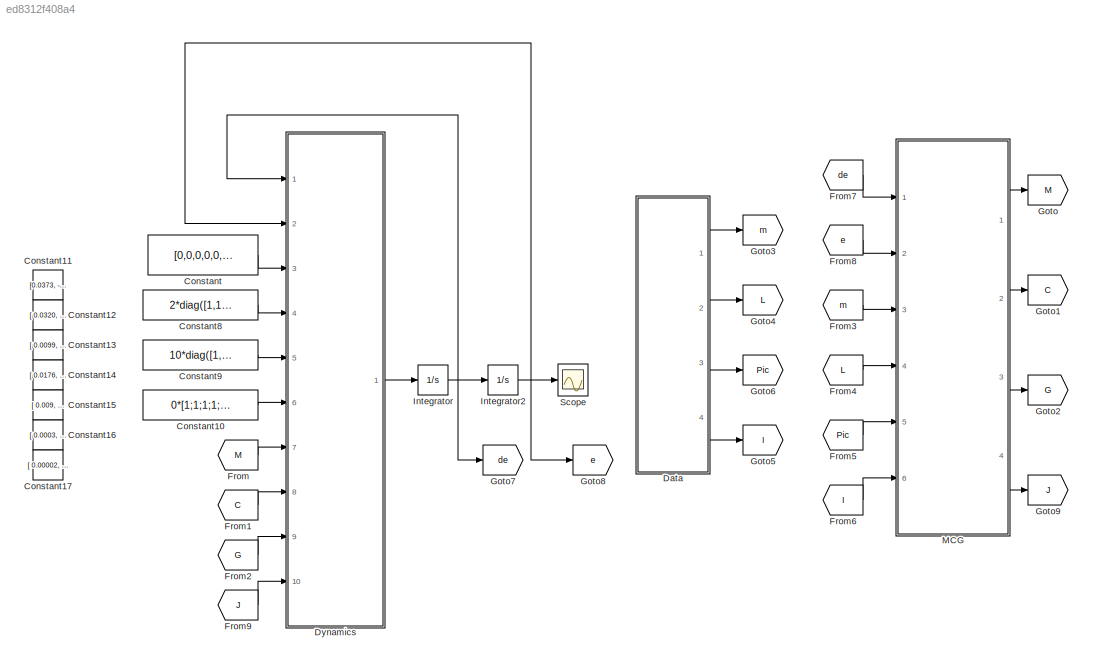
MODEL slx_ed8312f408a4
KIND model
CONFIG AbsTol = auto
CONFIG EnableMultiTasking = off
CONFIG FixedStep = 0.01
CONFIG MaxStep = auto
CONFIG MinStep = auto
CONFIG RelTol = 1e-3
CONFIG SampleTimeConstraint = Unconstrained
CONFIG Solver = FixedStepAuto
CONFIG SolverName = FixedStepAuto
CONFIG StartTime = 0.0
CONFIG StopTime = 100
BLOCK [Constant] Constant
  Value = [0,0,0,0,0,0]
BLOCK [Constant] Constant10
  Value = 0*[1;1;1;1;1;1]
BLOCK [Constant] Constant11
  Commented = on
  Value = [0.0373,  -0.0076,   0.1064;\n       0.1127,   0.0065,   0.0648;\n       0.0447,   0.0125,  -0.0554;\n       0.0006,   0.0052,   0.1068;\n            0,   0.0062,   0.0195;\n     -0.00001,  0.00001,  0.01126]
BLOCK [Constant] Constant12
  Commented = on
  Value = [ 0.0320,  -0.0017,   0.0093;\n      -0.0017,   0.0364,  -0.0018;\n       0.0093,  -0.0018,   0.0334]
BLOCK [Constant] Constant13
  Commented = on
  Value = [ 0.0099,   0.0008,  -0.0002;\n       0.0008,   0.0646,   0.0002;\n      -0.0002,   0.0002,   0.0684]
BLOCK [Constant] Constant14
  Commented = on
  Value = [ 0.0176,    0.001,   0.0007;\n        0.001,   0.0195,   0.0002;\n       0.0007,   0.0002,    0.024]
BLOCK [Constant] Constant15
  Commented = on
  Value = [  0.009,        0,        0;\n            0,   0.0081,   0.0002;\n            0,   0.0002,   0.0037]
BLOCK [Constant] Constant16
  Commented = on
  Value = [ 0.0003,        0,        0;\n            0,   0.0002,        0;\n            0,        0,   0.0003]
BLOCK [Constant] Constant17
  Commented = on
  Value = [ 0.00002,        0,        0;\n             0,  0.00002,        0;\n             0,        0,  0.00003]
BLOCK [Constant] Constant8
  Value = 2*diag([1,1,1,1,1,1])
BLOCK [Constant] Constant9
  Value = 10*diag([1,1,1,1,1,1])
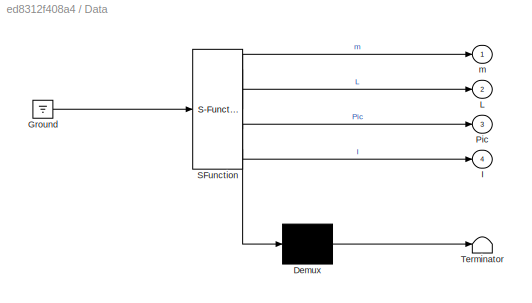
BLOCK [SubSystem] Data
  ErrorFcn = Stateflow.Translate.translate
  PermitHierarchicalResolution = ExplicitOnly
  Ports = [0, 4]
  RequestExecContextInheritance = off
  SFBlockType = MATLAB Function
  TreatAsAtomicUnit = on
BLOCK [Demux] Data/ Demux 
  Outputs = 1
  Ports = [1, 1]
BLOCK [Ground] Data/ Ground 
BLOCK [S-Function] Data/ SFunction 
  EnableBusSupport = on
  FunctionName = sf_sfun
  PortCounts = [1 5]
  Ports = [1, 5]
  SFcnIsStateOwnerBlock = off
  SFunctionDeploymentMode = off
  Tag = Stateflow S-Function DYN_02x 3
BLOCK [Terminator] Data/ Terminator 
BLOCK [Outport] Data/I
  IconDisplay = Port number
  Port = 4
BLOCK [Outport] Data/L
  IconDisplay = Port number
  Port = 2
BLOCK [Outport] Data/Pic
  IconDisplay = Port number
  Port = 3
BLOCK [Outport] Data/m
  IconDisplay = Port number
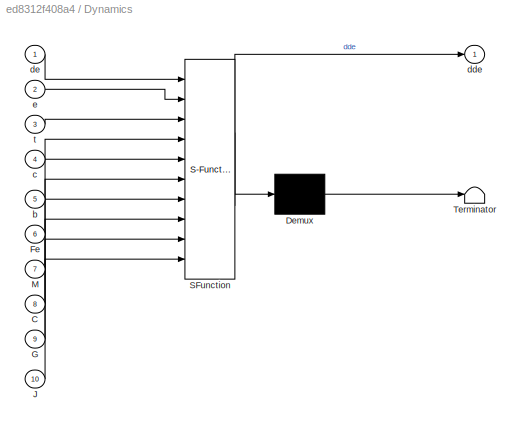
BLOCK [SubSystem] Dynamics
  ErrorFcn = Stateflow.Translate.translate
  PermitHierarchicalResolution = ExplicitOnly
  Ports = [10, 1]
  RequestExecContextInheritance = off
  SFBlockType = MATLAB Function
  TreatAsAtomicUnit = on
BLOCK [Demux] Dynamics/ Demux 
  Outputs = 1
  Ports = [1, 1]
BLOCK [S-Function] Dynamics/ SFunction 
  EnableBusSupport = on
  FunctionName = sf_sfun
  PortCounts = [10 2]
  Ports = [10, 2]
  SFcnIsStateOwnerBlock = off
  SFunctionDeploymentMode = off
  Tag = Stateflow S-Function DYN_02x 1
BLOCK [Terminator] Dynamics/ Terminator 
BLOCK [Inport] Dynamics/C
  IconDisplay = Port number
  Port = 8
BLOCK [Inport] Dynamics/Fe
  IconDisplay = Port number
  Port = 6
BLOCK [Inport] Dynamics/G
  IconDisplay = Port number
  Port = 9
BLOCK [Inport] Dynamics/J
  IconDisplay = Port number
  Port = 10
BLOCK [Inport] Dynamics/M
  IconDisplay = Port number
  Port = 7
BLOCK [Inport] Dynamics/b
  IconDisplay = Port number
  Port = 5
BLOCK [Inport] Dynamics/c
  IconDisplay = Port number
  Port = 4
BLOCK [Outport] Dynamics/dde
  IconDisplay = Port number
BLOCK [Inport] Dynamics/de
  IconDisplay = Port number
BLOCK [Inport] Dynamics/e
  IconDisplay = Port number
  Port = 2
BLOCK [Inport] Dynamics/t
  IconDisplay = Port number
  Port = 3
BLOCK [From] From
  GotoTag = M
BLOCK [From] From1
  GotoTag = C
BLOCK [From] From2
  GotoTag = G
BLOCK [From] From3
  GotoTag = m
BLOCK [From] From4
  GotoTag = L
BLOCK [From] From5
  GotoTag = Pic
BLOCK [From] From6
  GotoTag = I
BLOCK [From] From7
  GotoTag = de
BLOCK [From] From8
  GotoTag = e
BLOCK [From] From9
  GotoTag = J
BLOCK [Goto] Goto
  GotoTag = M
BLOCK [Goto] Goto1
  GotoTag = C
BLOCK [Goto] Goto2
  GotoTag = G
BLOCK [Goto] Goto3
  GotoTag = m
BLOCK [Goto] Goto4
  GotoTag = L
BLOCK [Goto] Goto5
  GotoTag = I
BLOCK [Goto] Goto6
  GotoTag = Pic
BLOCK [Goto] Goto7
  GotoTag = de
BLOCK [Goto] Goto8
  GotoTag = e
BLOCK [Goto] Goto9
  GotoTag = J
BLOCK [Integrator] Integrator
  InitialCondition = [0;0;0;0;0;0]
  Ports = [1, 1]
BLOCK [Integrator] Integrator2
  InitialCondition = [0;0;0;0;0;0]
  Ports = [1, 1]
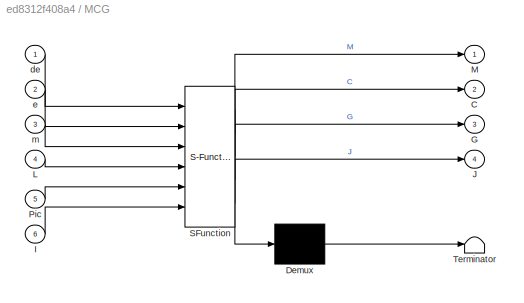
BLOCK [SubSystem] MCG
  ErrorFcn = Stateflow.Translate.translate
  PermitHierarchicalResolution = ExplicitOnly
  Ports = [6, 4]
  RequestExecContextInheritance = off
  SFBlockType = MATLAB Function
  TreatAsAtomicUnit = on
BLOCK [Demux] MCG/ Demux 
  DisplayOption = bar
  Outputs = 1
  Ports = [1, 1]
BLOCK [S-Function] MCG/ SFunction 
  EnableBusSupport = on
  FunctionName = sf_sfun
  PortCounts = [6 5]
  Ports = [6, 5]
  SFcnIsStateOwnerBlock = off
  SFunctionDeploymentMode = off
  Tag = Stateflow S-Function DYN_02x 2
BLOCK [Terminator] MCG/ Terminator 
BLOCK [Outport] MCG/C
  IconDisplay = Port number
  Port = 2
BLOCK [Outport] MCG/G
  IconDisplay = Port number
  Port = 3
BLOCK [Inport] MCG/I
  IconDisplay = Port number
  Port = 6
BLOCK [Outport] MCG/J
  IconDisplay = Port number
  Port = 4
BLOCK [Inport] MCG/L
  IconDisplay = Port number
  Port = 4
BLOCK [Outport] MCG/M
  IconDisplay = Port number
  VectorParamsAs1DForOutWhenUnconnected = on
BLOCK [Inport] MCG/Pic
  IconDisplay = Port number
  Port = 5
BLOCK [Inport] MCG/de
  IconDisplay = Port number
BLOCK [Inport] MCG/e
  IconDisplay = Port number
  Port = 2
BLOCK [Inport] MCG/m
  IconDisplay = Port number
  Port = 3
BLOCK [Scope] Scope
  Floating = off
  NumInputPorts = 1
  Ports = [1]
  ScopeSpecificationString = Simulink.scopes.TimeScopeBlockCfg('CurrentConfiguration', extmgr.ConfigurationSet(extmgr.Configuration('Core','General UI',true,'FigureColor',[1 1 1]),extmgr.Configuration('Core','Source UI',true),extmgr.Configuration('Sources','WiredSimulink',true,'DataLogging',true,'DataLoggingSaveFormat','StructureWithTime'),extmgr.Configuration('Visuals','Time Domain',true,'SerializedDisplays',{struct('MinYLim...<+2217ch>
LINE Constant10:1 -> Dynamics:6
LINE Constant8:1 -> Dynamics:4
LINE Constant9:1 -> Dynamics:5
LINE Constant:1 -> Dynamics:3
LINE Data:1 -> Goto3:1
LINE Data:2 -> Goto4:1
LINE Data:3 -> Goto6:1
LINE Data:4 -> Goto5:1
LINE Dynamics:1 -> Integrator:1
LINE From1:1 -> Dynamics:8
LINE From2:1 -> Dynamics:9
LINE From3:1 -> MCG:3
LINE From4:1 -> MCG:4
LINE From5:1 -> MCG:5
LINE From6:1 -> MCG:6
LINE From7:1 -> MCG:1
LINE From8:1 -> MCG:2
LINE From9:1 -> Dynamics:10
LINE From:1 -> Dynamics:7
NET Integrator2:1 -> Dynamics:2, Goto8:1, Scope:1
NET Integrator:1 -> Dynamics:1, Goto7:1, Integrator2:1
LINE MCG:1 -> Goto:1
LINE MCG:2 -> Goto1:1
LINE MCG:3 -> Goto2:1
LINE MCG:4 -> Goto9:1
note: NET lines group one-source signal fan-out (src -> all destinations, sorted); 1:1 wires keep LINE
CHART Dynamics states=1 transitions=1
  STATE_LABEL 'eML_blk_kernel()'
  STATE_LABEL "SCRIPT:\nfunction dde = DYN_6DOF(de,e,t,c,b,Fe,M,C,G,J)\n%%\ne1 = e(1); e2 = e(2); e3 = e(3);\ne4 = e(4); e5 = e(5); e6 = e(6);\nde1 = de(1); de2 = de(2); de3 = de(3);\nde4 = de(4); de5 = de(5); de6 = de(6);\n\n\n%%\nde = [de1;de2;de3;de4;de5;de6];\nF = c*sign(de) + b*de + J'*Fe ;\ndde = M\\(t-C*de-G-F);"
CHART MCG states=1 transitions=1
  STATE_LABEL 'eML_blk_kernel()'
  STATE_LABEL 'SCRIPT:\nfunction [M,C,G,J] = MCGJ_6DOF(de,e,m,L,Pic,I)\ne1 = e(1); e2 = e(2); e3 = e(3);\ne4 = e(4); e5 = e(5); e6 = e(6);\nde1 = de(1); de2 = de(2); de3 = de(3);\nde4 = de(4); de5 = de(5); de6 = de(6);\nx1 = Pic(1,1); y1 = Pic(1,2); z1 = Pic(1,3);\nx2 = Pic(2,1); y2 = Pic(2,2); z2 = Pic(2,3);\nx3 = Pic(3,1); y3 = Pic(3,2); z3 = Pic(3,3);\nx4 = Pic(4,1); y4 = Pic(4,2); z4 = Pic(4,3);\nx5 = Pic(5,1); y5 = P...<+3608ch>'
CHART Data states=1 transitions=1
  STATE_LABEL 'eML_blk_kernel()'
  STATE_LABEL 'SCRIPT:\nfunction [m,L,Pic,I] = DATA_6DOF()\na1=0.75; a2=2.70; a3=0.90; d1=3.35; d4=2.95; d7=0.80;\nm0 = 7.2407; m1 = 5.6511; m2 = 4.6061; m3 = 4.2963; m4 = 1.9151; m5 = 0.3399; m6 = 0.0714;\nm = [m1 m2 m3 m4 m5 m6];\nL = [a1 a2 a3 d1 d4 d7];\nPic = zeros(6,3);\nI = zeros(6,6);\n\n'
